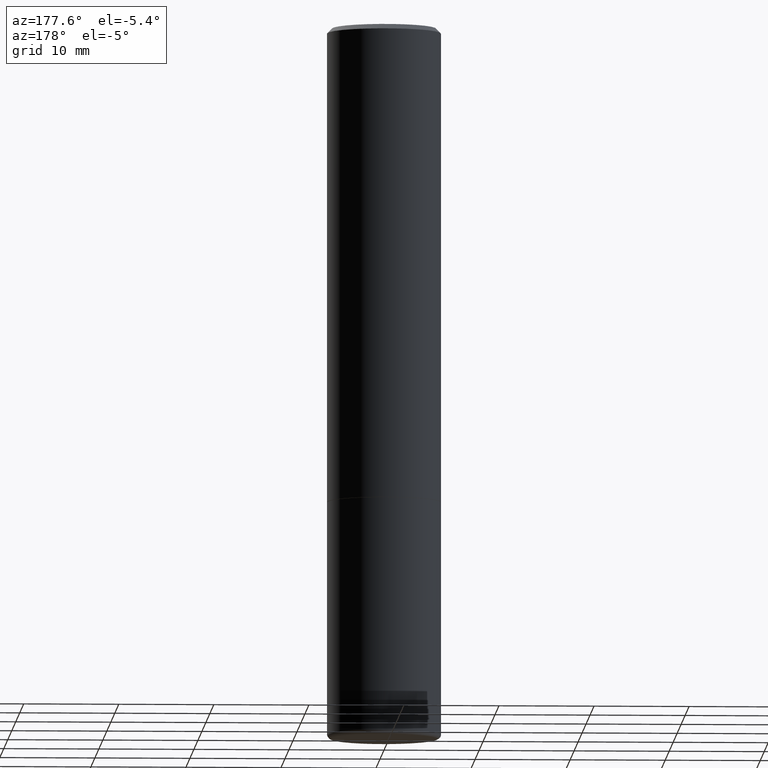
[diagram: clean part render]
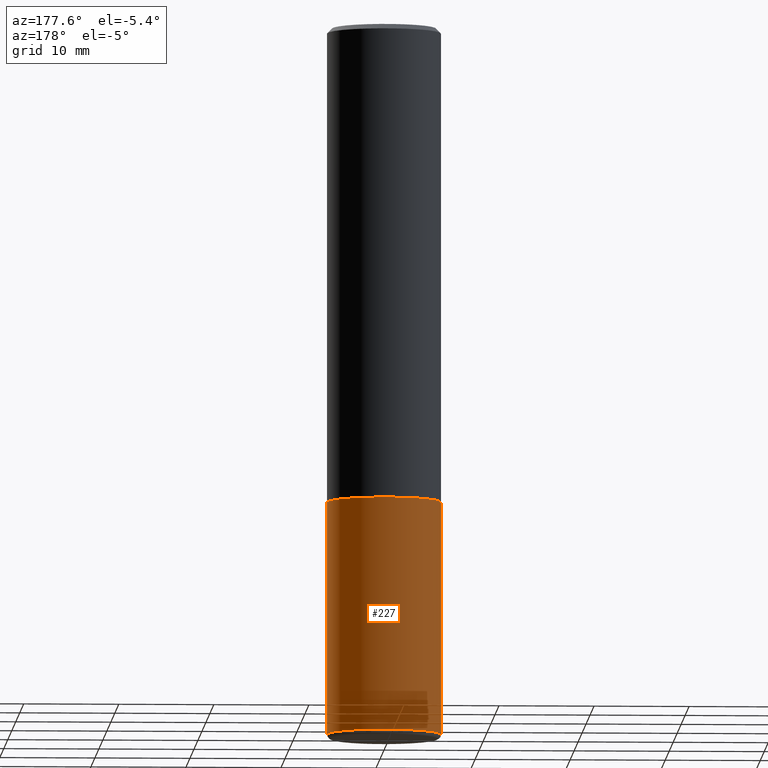
[diagram: same view with one face highlighted and labeled with its STEP entity id]
A machine part, auxiliary view. The second image highlights one B-rep face of the part: STEP entity #227.
In plain terms, the highlighted cylindrical surface (partial cylindrical patch) has radius 5.9995 mm, axis along (-0, 0, 1).
Its self-contained STEP definition (entity closure, byte-faithful):
#1 = DIRECTION ( 'NONE',  ( -2.445468806185136877E-29, 3.491481338843145188E-15, 1.000000000000000000 ) ) ;
#57 = VERTEX_POINT ( 'NONE', #80 ) ;
#60 = VECTOR ( 'NONE', #412, 39.37007874015748143 ) ;
#66 = VERTEX_POINT ( 'NONE', #345 ) ;
#79 = EDGE_CURVE ( 'NONE', #357, #57, #225, .T. ) ;
#80 = CARTESIAN_POINT ( 'NONE',  ( -0.2361999999999999933, -6.878620523371424709E-15, -1.968499999999999694 ) ) ;
#85 = VECTOR ( 'NONE', #1, 39.37007874015748143 ) ;
#91 = ORIENTED_EDGE ( 'NONE', *, *, #79, .T. ) ;
#94 = ORIENTED_EDGE ( 'NONE', *, *, #130, .F. ) ;
#97 = AXIS2_PLACEMENT_3D ( 'NONE', #380, #182, #313 ) ;
#106 = DIRECTION ( 'NONE',  ( -2.445468806185136597E-29, 3.491481338843145583E-15, 1.000000000000000000 ) ) ;
#117 = VERTEX_POINT ( 'NONE', #293 ) ;
#125 = CARTESIAN_POINT ( 'NONE',  ( 7.172804555421625687E-29, -1.024086391496083208E-14, -2.933100000000000485 ) ) ;
#130 = EDGE_CURVE ( 'NONE', #117, #66, #192, .T. ) ;
#165 = CIRCLE ( 'NONE', #229, 0.2361999999999999655 ) ;
#178 = CARTESIAN_POINT ( 'NONE',  ( -0.2361999999999999933, 1.678301941865356591E-15, -1.161852468318208757E-29 ) ) ;
#182 = DIRECTION ( 'NONE',  ( -2.445468806185136597E-29, 3.491481338843145583E-15, 1.000000000000000000 ) ) ;
#191 = CARTESIAN_POINT ( 'NONE',  ( 0.2361999999999999933, -1.649375784469496131E-15, 1.151752954443000088E-29 ) ) ;
#192 = LINE ( 'NONE', #191, #85 ) ;
#194 = ORIENTED_EDGE ( 'NONE', *, *, #326, .F. ) ;
#195 = EDGE_CURVE ( 'NONE', #117, #357, #165, .T. ) ;
#225 = LINE ( 'NONE', #178, #60 ) ;
#227 = ADVANCED_FACE ( 'NONE', ( #248 ), #309, .T. ) ;
#229 = AXIS2_PLACEMENT_3D ( 'NONE', #125, #243, #411 ) ;
#240 = DIRECTION ( 'NONE',  ( 1.000000000000000000, -6.982962677686265133E-15, 0.000000000000000000 ) ) ;
#243 = DIRECTION ( 'NONE',  ( -2.445468806185136597E-29, 3.491481338843145583E-15, 1.000000000000000000 ) ) ;
#248 = FACE_OUTER_BOUND ( 'NONE', #295, .T. ) ;
#293 = CARTESIAN_POINT ( 'NONE',  ( 0.2362000000000000766, -1.189023969943033018E-14, -2.933100000000000485 ) ) ;
#295 = EDGE_LOOP ( 'NONE', ( #321, #91, #194, #94 ) ) ;
#304 = CARTESIAN_POINT ( 'NONE',  ( 4.813905344975440714E-29, -6.872981015512730918E-15, -1.968499999999999694 ) ) ;
#309 = CYLINDRICAL_SURFACE ( 'NONE', #97, 0.2361999999999999933 ) ;
#313 = DIRECTION ( 'NONE',  ( 1.000000000000000000, -6.982962677686266711E-15, 4.876176775795936353E-29 ) ) ;
#321 = ORIENTED_EDGE ( 'NONE', *, *, #195, .T. ) ;
#326 = EDGE_CURVE ( 'NONE', #66, #57, #395, .T. ) ;
#337 = AXIS2_PLACEMENT_3D ( 'NONE', #304, #106, #240 ) ;
#342 = CARTESIAN_POINT ( 'NONE',  ( -0.2362000000000000766, -8.562561973095475682E-15, -2.933100000000000485 ) ) ;
#345 = CARTESIAN_POINT ( 'NONE',  ( 0.2361999999999999933, -8.522356799982226655E-15, -1.968499999999999694 ) ) ;
#357 = VERTEX_POINT ( 'NONE', #342 ) ;
#380 = CARTESIAN_POINT ( 'NONE',  ( 0.000000000000000000, 0.000000000000000000, 0.000000000000000000 ) ) ;
#395 = CIRCLE ( 'NONE', #337, 0.2361999999999999933 ) ;
#411 = DIRECTION ( 'NONE',  ( 1.000000000000000000, -6.982962677686265922E-15, 0.000000000000000000 ) ) ;
#412 = DIRECTION ( 'NONE',  ( -2.445468806185136877E-29, 3.491481338843145188E-15, 1.000000000000000000 ) ) ;